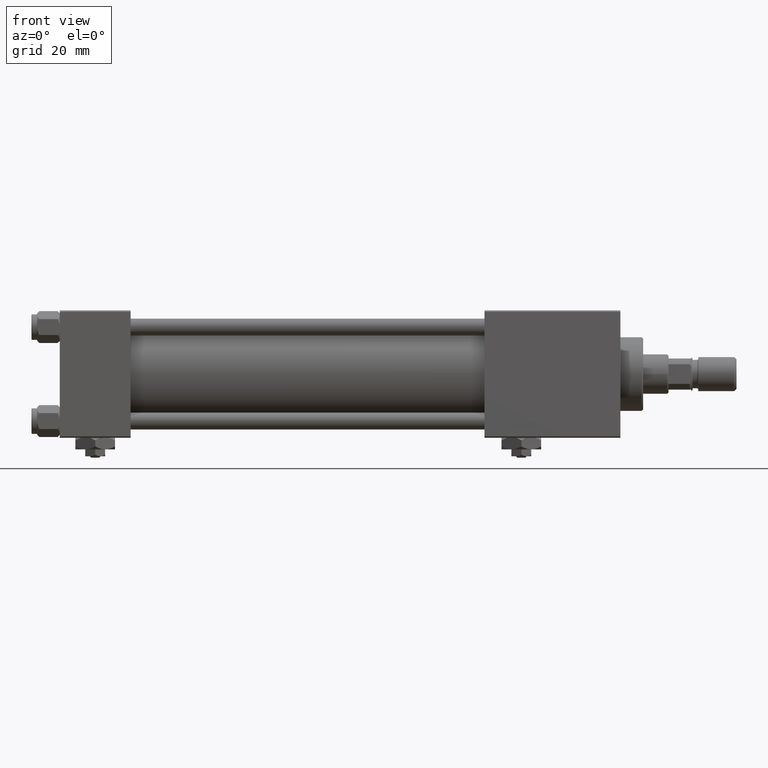
[diagram: clean part render]
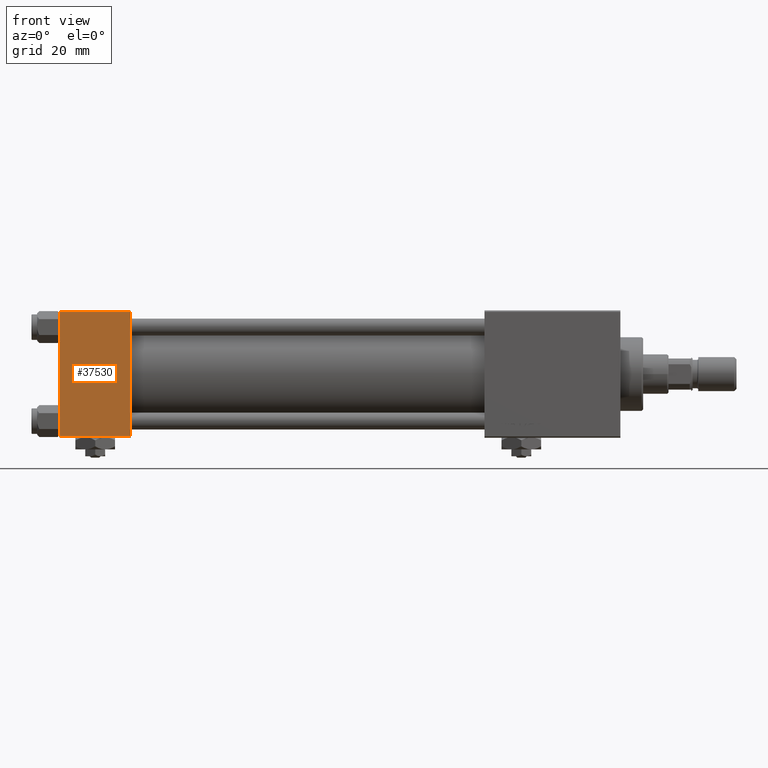
[diagram: same view with one face highlighted and labeled with its STEP entity id]
A machine part, front view. The second image highlights one B-rep face of the part: STEP entity #37530.
In plain terms, the highlighted planar face has unit normal (0, 1, 0).
Its self-contained STEP definition (entity closure, byte-faithful):
#2853 = LINE ( 'NONE', #15104, #28325 ) ;
#6788 = DIRECTION ( 'NONE',  ( -0.000000000000000000, 1.000000000000000000, 0.000000000000000000 ) ) ;
#8419 = EDGE_CURVE ( 'NONE', #16048, #50702, #40334, .T. ) ;
#9338 = VECTOR ( 'NONE', #11333, 1000.000000000000000 ) ;
#10370 = VECTOR ( 'NONE', #51171, 1000.000000000000000 ) ;
#10788 = CARTESIAN_POINT ( 'NONE',  ( 25.00000000000000000, -22.50000000000000000, 22.50000000000000000 ) ) ;
#11333 = DIRECTION ( 'NONE',  ( 1.000000000000000000, 0.000000000000000000, 0.000000000000000000 ) ) ;
#11902 = CARTESIAN_POINT ( 'NONE',  ( 25.00000000000000000, -22.50000000000000000, 22.00000000000000000 ) ) ;
#15104 = CARTESIAN_POINT ( 'NONE',  ( 25.00000000000000000, -22.50000000000000000, 22.00000000000000000 ) ) ;
#16048 = VERTEX_POINT ( 'NONE', #42047 ) ;
#18803 = FACE_OUTER_BOUND ( 'NONE', #35761, .T. ) ;
#21354 = ORIENTED_EDGE ( 'NONE', *, *, #43379, .T. ) ;
#23063 = DIRECTION ( 'NONE',  ( 0.000000000000000000, -0.000000000000000000, 1.000000000000000000 ) ) ;
#23227 = LINE ( 'NONE', #27480, #10370 ) ;
#23900 = ORIENTED_EDGE ( 'NONE', *, *, #34535, .T. ) ;
#27480 = CARTESIAN_POINT ( 'NONE',  ( 25.00000000000000000, -22.50000000000000000, 22.50000000000000000 ) ) ;
#27751 = VECTOR ( 'NONE', #44103, 1000.000000000000000 ) ;
#27882 = CARTESIAN_POINT ( 'NONE',  ( 0.000000000000000000, -22.50000000000000000, 22.50000000000000000 ) ) ;
#28325 = VECTOR ( 'NONE', #31357, 1000.000000000000000 ) ;
#30751 = CARTESIAN_POINT ( 'NONE',  ( 0.000000000000000000, -22.50000000000000000, 22.00000000000000000 ) ) ;
#31357 = DIRECTION ( 'NONE',  ( -1.000000000000000000, 0.000000000000000000, 0.000000000000000000 ) ) ;
#31873 = LINE ( 'NONE', #27882, #27751 ) ;
#32817 = EDGE_CURVE ( 'NONE', #43317, #50702, #23227, .T. ) ;
#34535 = EDGE_CURVE ( 'NONE', #43317, #42274, #2853, .T. ) ;
#35761 = EDGE_LOOP ( 'NONE', ( #21354, #36814, #49438, #23900 ) ) ;
#36814 = ORIENTED_EDGE ( 'NONE', *, *, #8419, .T. ) ;
#37013 = CARTESIAN_POINT ( 'NONE',  ( 25.00000000000000000, -22.50000000000000000, -21.99999999999997158 ) ) ;
#37530 = ADVANCED_FACE ( 'NONE', ( #18803 ), #39005, .F. ) ;
#39005 = PLANE ( 'NONE',  #39433 ) ;
#39433 = AXIS2_PLACEMENT_3D ( 'NONE', #10788, #6788, #23063 ) ;
#40334 = LINE ( 'NONE', #48607, #9338 ) ;
#42047 = CARTESIAN_POINT ( 'NONE',  ( 0.000000000000000000, -22.50000000000000000, -21.99999999999997158 ) ) ;
#42274 = VERTEX_POINT ( 'NONE', #30751 ) ;
#43317 = VERTEX_POINT ( 'NONE', #11902 ) ;
#43379 = EDGE_CURVE ( 'NONE', #42274, #16048, #31873, .T. ) ;
#44103 = DIRECTION ( 'NONE',  ( 0.000000000000000000, 0.000000000000000000, -1.000000000000000000 ) ) ;
#48607 = CARTESIAN_POINT ( 'NONE',  ( 25.00000000000000000, -22.50000000000000000, -21.99999999999998579 ) ) ;
#49438 = ORIENTED_EDGE ( 'NONE', *, *, #32817, .F. ) ;
#50702 = VERTEX_POINT ( 'NONE', #37013 ) ;
#51171 = DIRECTION ( 'NONE',  ( 0.000000000000000000, 0.000000000000000000, -1.000000000000000000 ) ) ;